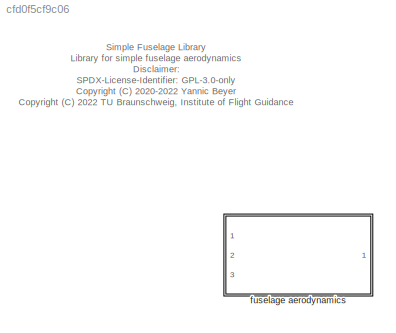
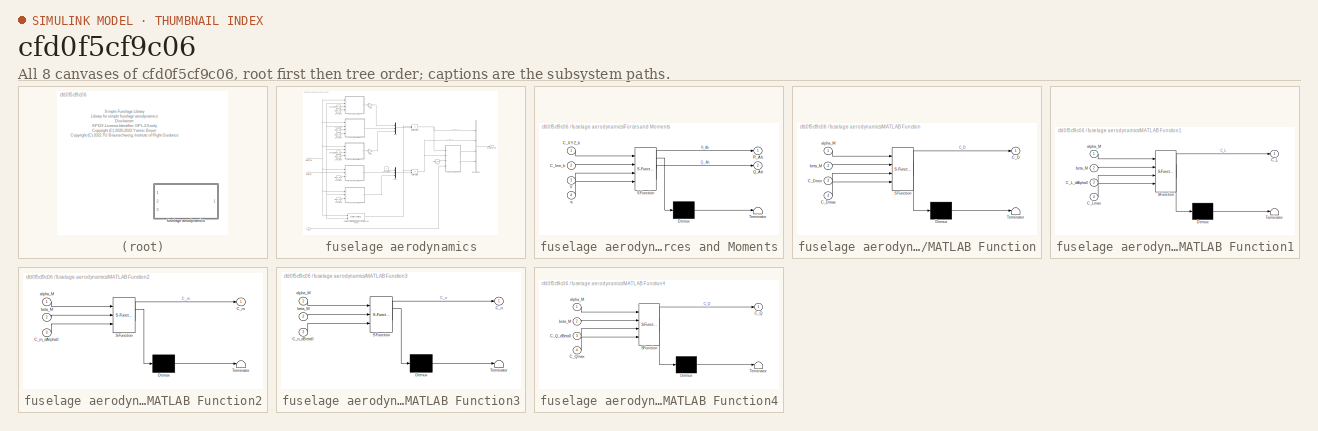
[diagram: thumbnail index - all 8 canvases of the model, root first then tree order]
MODEL slx_cfd0f5cf9c06
KIND library
CONFIG AbsTol = auto
CONFIG EnableMultiTasking = off
CONFIG FixedStep = auto
CONFIG MaxStep = auto
CONFIG MinStep = auto
CONFIG RelTol = 1e-3
CONFIG SampleTimeConstraint = Unconstrained
CONFIG Solver = VariableStepAuto
CONFIG SolverName = VariableStepAuto
CONFIG StartTime = 0.0
CONFIG StopTime = 10.0
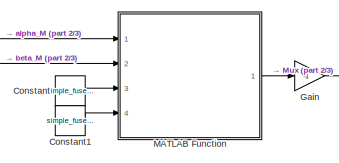
[diagram: fuselage aerodynamics - part 1/3, top left region]
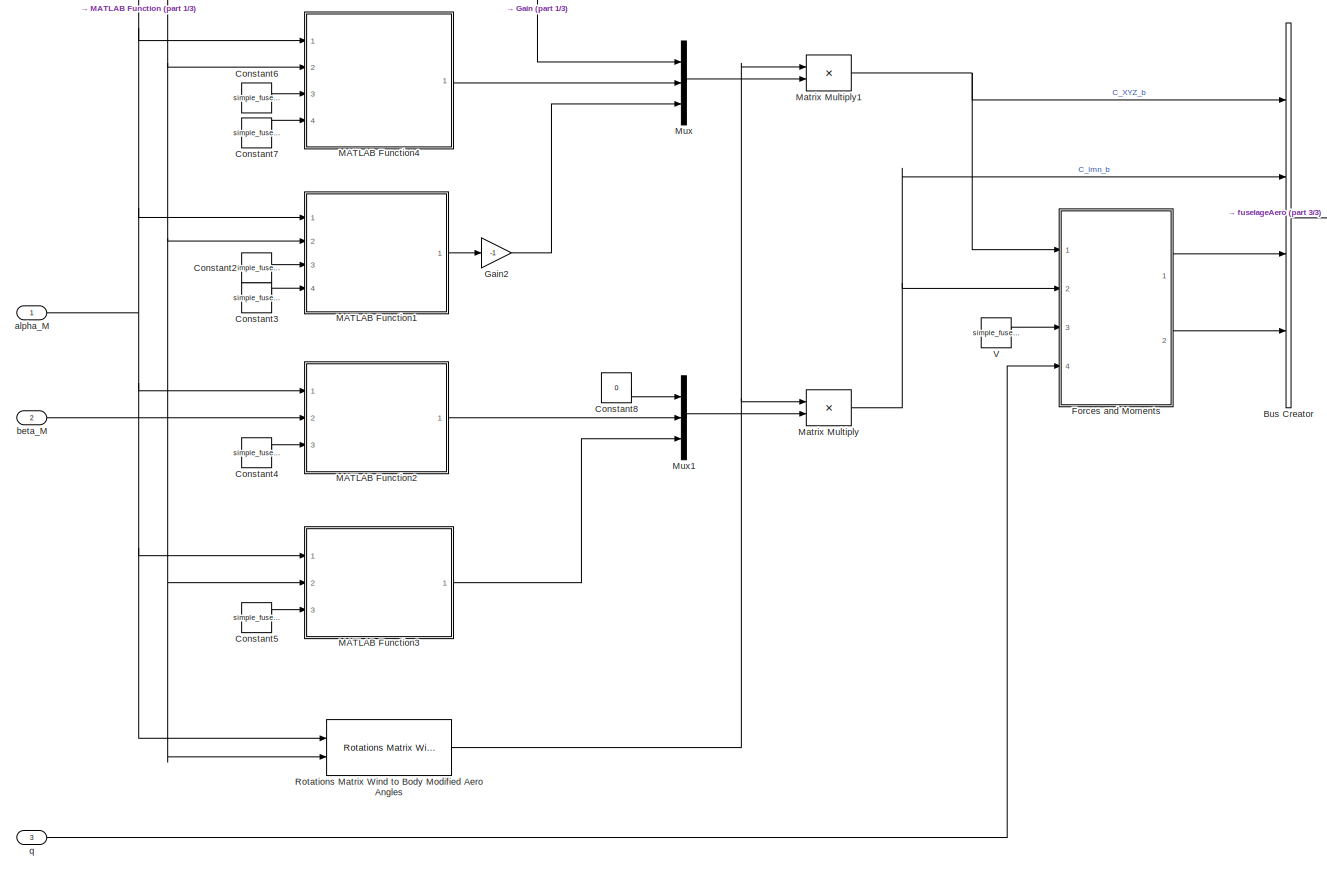
[diagram: fuselage aerodynamics - part 2/3, most of the canvas]
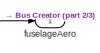
[diagram: fuselage aerodynamics - part 3/3, middle right region]
BLOCK [SubSystem] fuselage aerodynamics
  Ports = [3, 1]
  RequestExecContextInheritance = off
BLOCK [BusCreator] fuselage aerodynamics/Bus Creator
  DisplayOption = bar
  InheritFromInputs = on
  Inputs = 4
  Ports = [4, 1]
BLOCK [Constant] fuselage aerodynamics/Constant
  Value = simple_fuselage.C_Dmin
BLOCK [Constant] fuselage aerodynamics/Constant1
  Value = simple_fuselage.C_Dmax
BLOCK [Constant] fuselage aerodynamics/Constant2
  Value = simple_fuselage.dCL_dalpha0
BLOCK [Constant] fuselage aerodynamics/Constant3
  Value = simple_fuselage.C_Lmax
BLOCK [Constant] fuselage aerodynamics/Constant4
  Value = simple_fuselage.dCm_dalpha
BLOCK [Constant] fuselage aerodynamics/Constant5
  Value = simple_fuselage.dCn_dbeta
BLOCK [Constant] fuselage aerodynamics/Constant6
  Value = simple_fuselage.dCQ_dbeta0
BLOCK [Constant] fuselage aerodynamics/Constant7
  Value = simple_fuselage.C_Qmax
BLOCK [Constant] fuselage aerodynamics/Constant8
  Value = 0
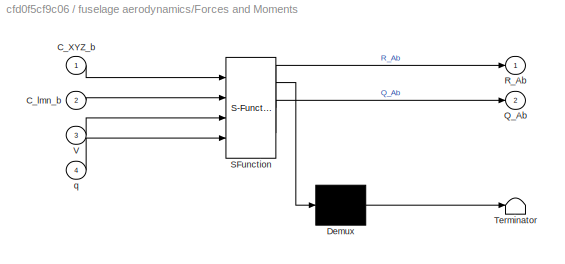
BLOCK [SubSystem] fuselage aerodynamics/Forces and Moments
  ErrorFcn = Stateflow.Translate.translate
  PermitHierarchicalResolution = ExplicitOnly
  Ports = [4, 2]
  RequestExecContextInheritance = off
  SFBlockType = MATLAB Function
  TreatAsAtomicUnit = on
BLOCK [Demux] fuselage aerodynamics/Forces and Moments/ Demux 
  Outputs = 1
  Ports = [1, 1]
BLOCK [S-Function] fuselage aerodynamics/Forces and Moments/ SFunction 
  EnableBusSupport = off
  FunctionName = sf_sfun
  PortCounts = [4 3]
  Ports = [4, 3]
  SFcnIsStateOwnerBlock = off
  SFunctionDeploymentMode = off
  Tag = Stateflow S-Function simpleFuselage_lib 17
BLOCK [Terminator] fuselage aerodynamics/Forces and Moments/ Terminator 
BLOCK [Inport] fuselage aerodynamics/Forces and Moments/C_XYZ_b
  IconDisplay = Port number
BLOCK [Inport] fuselage aerodynamics/Forces and Moments/C_lmn_b
  IconDisplay = Port number
  Port = 2
BLOCK [Outport] fuselage aerodynamics/Forces and Moments/Q_Ab
  IconDisplay = Port number
  Port = 2
BLOCK [Outport] fuselage aerodynamics/Forces and Moments/R_Ab
  IconDisplay = Port number
BLOCK [Inport] fuselage aerodynamics/Forces and Moments/V
  IconDisplay = Port number
  Port = 3
BLOCK [Inport] fuselage aerodynamics/Forces and Moments/q
  IconDisplay = Port number
  Port = 4
BLOCK [Gain] fuselage aerodynamics/Gain
  Gain = -1
  OutDataTypeStr = Inherit: Inherit via internal rule
  ParamDataTypeStr = Inherit: Inherit via internal rule
  SaturateOnIntegerOverflow = off
BLOCK [Gain] fuselage aerodynamics/Gain2
  Gain = -1
  OutDataTypeStr = Inherit: Inherit via internal rule
  ParamDataTypeStr = Inherit: Inherit via internal rule
  SaturateOnIntegerOverflow = off
BLOCK [SubSystem] fuselage aerodynamics/MATLAB Function
  ErrorFcn = Stateflow.Translate.translate
  PermitHierarchicalResolution = ExplicitOnly
  Ports = [4, 1]
  RequestExecContextInheritance = off
  SFBlockType = MATLAB Function
  TreatAsAtomicUnit = on
BLOCK [Demux] fuselage aerodynamics/MATLAB Function/ Demux 
  Outputs = 1
  Ports = [1, 1]
BLOCK [S-Function] fuselage aerodynamics/MATLAB Function/ SFunction 
  EnableBusSupport = off
  FunctionName = sf_sfun
  PortCounts = [4 2]
  Ports = [4, 2]
  SFcnIsStateOwnerBlock = off
  SFunctionDeploymentMode = off
  Tag = Stateflow S-Function simpleFuselage_lib 9
BLOCK [Terminator] fuselage aerodynamics/MATLAB Function/ Terminator 
BLOCK [Outport] fuselage aerodynamics/MATLAB Function/C_D
  IconDisplay = Port number
BLOCK [Inport] fuselage aerodynamics/MATLAB Function/C_Dmax
  IconDisplay = Port number
  Port = 4
BLOCK [Inport] fuselage aerodynamics/MATLAB Function/C_Dmin
  IconDisplay = Port number
  Port = 3
BLOCK [Inport] fuselage aerodynamics/MATLAB Function/alpha_M
  IconDisplay = Port number
BLOCK [Inport] fuselage aerodynamics/MATLAB Function/beta_M
  IconDisplay = Port number
  Port = 2
BLOCK [SubSystem] fuselage aerodynamics/MATLAB Function1
  ErrorFcn = Stateflow.Translate.translate
  PermitHierarchicalResolution = ExplicitOnly
  Ports = [4, 1]
  RequestExecContextInheritance = off
  SFBlockType = MATLAB Function
  TreatAsAtomicUnit = on
BLOCK [Demux] fuselage aerodynamics/MATLAB Function1/ Demux 
  Outputs = 1
  Ports = [1, 1]
BLOCK [S-Function] fuselage aerodynamics/MATLAB Function1/ SFunction 
  EnableBusSupport = off
  FunctionName = sf_sfun
  PortCounts = [4 2]
  Ports = [4, 2]
  SFcnIsStateOwnerBlock = off
  SFunctionDeploymentMode = off
  Tag = Stateflow S-Function simpleFuselage_lib 5
BLOCK [Terminator] fuselage aerodynamics/MATLAB Function1/ Terminator 
BLOCK [Outport] fuselage aerodynamics/MATLAB Function1/C_L
  IconDisplay = Port number
BLOCK [Inport] fuselage aerodynamics/MATLAB Function1/C_L_dAlpha0
  IconDisplay = Port number
  Port = 3
BLOCK [Inport] fuselage aerodynamics/MATLAB Function1/C_Lmax
  IconDisplay = Port number
  Port = 4
BLOCK [Inport] fuselage aerodynamics/MATLAB Function1/alpha_M
  IconDisplay = Port number
BLOCK [Inport] fuselage aerodynamics/MATLAB Function1/beta_M
  IconDisplay = Port number
  Port = 2
BLOCK [SubSystem] fuselage aerodynamics/MATLAB Function2
  ErrorFcn = Stateflow.Translate.translate
  PermitHierarchicalResolution = ExplicitOnly
  Ports = [3, 1]
  RequestExecContextInheritance = off
  SFBlockType = MATLAB Function
  TreatAsAtomicUnit = on
BLOCK [Demux] fuselage aerodynamics/MATLAB Function2/ Demux 
  Outputs = 1
  Ports = [1, 1]
BLOCK [S-Function] fuselage aerodynamics/MATLAB Function2/ SFunction 
  EnableBusSupport = off
  FunctionName = sf_sfun
  PortCounts = [3 2]
  Ports = [3, 2]
  SFcnIsStateOwnerBlock = off
  SFunctionDeploymentMode = off
  Tag = Stateflow S-Function simpleFuselage_lib 11
BLOCK [Terminator] fuselage aerodynamics/MATLAB Function2/ Terminator 
BLOCK [Outport] fuselage aerodynamics/MATLAB Function2/C_m
  IconDisplay = Port number
BLOCK [Inport] fuselage aerodynamics/MATLAB Function2/C_m_dAlpha0
  IconDisplay = Port number
  Port = 3
BLOCK [Inport] fuselage aerodynamics/MATLAB Function2/alpha_M
  IconDisplay = Port number
BLOCK [Inport] fuselage aerodynamics/MATLAB Function2/beta_M
  IconDisplay = Port number
  Port = 2
BLOCK [SubSystem] fuselage aerodynamics/MATLAB Function3
  ErrorFcn = Stateflow.Translate.translate
  PermitHierarchicalResolution = ExplicitOnly
  Ports = [3, 1]
  RequestExecContextInheritance = off
  SFBlockType = MATLAB Function
  TreatAsAtomicUnit = on
BLOCK [Demux] fuselage aerodynamics/MATLAB Function3/ Demux 
  Outputs = 1
  Ports = [1, 1]
BLOCK [S-Function] fuselage aerodynamics/MATLAB Function3/ SFunction 
  EnableBusSupport = off
  FunctionName = sf_sfun
  PortCounts = [3 2]
  Ports = [3, 2]
  SFcnIsStateOwnerBlock = off
  SFunctionDeploymentMode = off
  Tag = Stateflow S-Function simpleFuselage_lib 6
BLOCK [Terminator] fuselage aerodynamics/MATLAB Function3/ Terminator 
BLOCK [Outport] fuselage aerodynamics/MATLAB Function3/C_n
  IconDisplay = Port number
BLOCK [Inport] fuselage aerodynamics/MATLAB Function3/C_n_dBeta0
  IconDisplay = Port number
  Port = 3
BLOCK [Inport] fuselage aerodynamics/MATLAB Function3/alpha_M
  IconDisplay = Port number
BLOCK [Inport] fuselage aerodynamics/MATLAB Function3/beta_M
  IconDisplay = Port number
  Port = 2
BLOCK [SubSystem] fuselage aerodynamics/MATLAB Function4
  ErrorFcn = Stateflow.Translate.translate
  PermitHierarchicalResolution = ExplicitOnly
  Ports = [4, 1]
  RequestExecContextInheritance = off
  SFBlockType = MATLAB Function
  TreatAsAtomicUnit = on
BLOCK [Demux] fuselage aerodynamics/MATLAB Function4/ Demux 
  Outputs = 1
  Ports = [1, 1]
BLOCK [S-Function] fuselage aerodynamics/MATLAB Function4/ SFunction 
  EnableBusSupport = off
  FunctionName = sf_sfun
  PortCounts = [4 2]
  Ports = [4, 2]
  SFcnIsStateOwnerBlock = off
  SFunctionDeploymentMode = off
  Tag = Stateflow S-Function simpleFuselage_lib 13
BLOCK [Terminator] fuselage aerodynamics/MATLAB Function4/ Terminator 
BLOCK [Outport] fuselage aerodynamics/MATLAB Function4/C_Q
  IconDisplay = Port number
BLOCK [Inport] fuselage aerodynamics/MATLAB Function4/C_Q_dBeta0
  IconDisplay = Port number
  Port = 3
BLOCK [Inport] fuselage aerodynamics/MATLAB Function4/C_Qmax
  IconDisplay = Port number
  Port = 4
BLOCK [Inport] fuselage aerodynamics/MATLAB Function4/alpha_M
  IconDisplay = Port number
BLOCK [Inport] fuselage aerodynamics/MATLAB Function4/beta_M
  IconDisplay = Port number
  Port = 2
BLOCK [Product] fuselage aerodynamics/Matrix Multiply
  InputSameDT = off
  Multiplication = Matrix(*)
  OutDataTypeStr = Inherit: Inherit via internal rule
  Ports = [2, 1]
  RndMeth = Floor
  SaturateOnIntegerOverflow = off
BLOCK [Product] fuselage aerodynamics/Matrix Multiply1
  InputSameDT = off
  Multiplication = Matrix(*)
  OutDataTypeStr = Inherit: Inherit via internal rule
  Ports = [2, 1]
  RndMeth = Floor
  SaturateOnIntegerOverflow = off
BLOCK [Mux] fuselage aerodynamics/Mux
  DisplayOption = bar
  Inputs = 3
  Ports = [3, 1]
BLOCK [Mux] fuselage aerodynamics/Mux1
  DisplayOption = bar
  Inputs = 3
  Ports = [3, 1]
BLOCK [Reference] fuselage aerodynamics/Rotations Matrix Wind to Body Modified Aero Angles  REF=axes_transformation_lib/Rotations Matrix  (lib defined in slx_69e2413c78c0)
Wind to Body
Modified Aero Angles
  Ports = [2, 1]
  SourceBlock = axes_transformation_lib/Rotations Matrix\nWind to Body\nModified Aero Angles
  SourceProductName = LADAC
  SourceType = SubSystem
BLOCK [Constant] fuselage aerodynamics/V
  Value = simple_fuselage.V
BLOCK [Inport] fuselage aerodynamics/alpha_M
  IconDisplay = Port number
BLOCK [Inport] fuselage aerodynamics/beta_M
  IconDisplay = Port number
  Port = 2
BLOCK [Outport] fuselage aerodynamics/fuselageAero
  IconDisplay = Port number
BLOCK [Inport] fuselage aerodynamics/q
  IconDisplay = Port number
  Port = 3
ANNOTATION (root): Simple Fuselage Library Library for simple fuselage aerodynamics Disclaimer: SPDX-License-Identifier: GPL-3.0-only <copyright redacted>
LINE fuselage aerodynamics/Bus Creator:1 -> fuselage aerodynamics/fuselageAero:1
LINE fuselage aerodynamics/Constant1:1 -> fuselage aerodynamics/MATLAB Function:4
LINE fuselage aerodynamics/Constant2:1 -> fuselage aerodynamics/MATLAB Function1:3
LINE fuselage aerodynamics/Constant3:1 -> fuselage aerodynamics/MATLAB Function1:4
LINE fuselage aerodynamics/Constant4:1 -> fuselage aerodynamics/MATLAB Function2:3
LINE fuselage aerodynamics/Constant5:1 -> fuselage aerodynamics/MATLAB Function3:3
LINE fuselage aerodynamics/Constant6:1 -> fuselage aerodynamics/MATLAB Function4:3
LINE fuselage aerodynamics/Constant7:1 -> fuselage aerodynamics/MATLAB Function4:4
LINE fuselage aerodynamics/Constant8:1 -> fuselage aerodynamics/Mux1:1
LINE fuselage aerodynamics/Constant:1 -> fuselage aerodynamics/MATLAB Function:3
LINE fuselage aerodynamics/Forces and Moments:1 -> fuselage aerodynamics/Bus Creator:3
LINE fuselage aerodynamics/Forces and Moments:2 -> fuselage aerodynamics/Bus Creator:4
LINE fuselage aerodynamics/Gain2:1 -> fuselage aerodynamics/Mux:3
LINE fuselage aerodynamics/Gain:1 -> fuselage aerodynamics/Mux:1
LINE fuselage aerodynamics/MATLAB Function1:1 -> fuselage aerodynamics/Gain2:1
LINE fuselage aerodynamics/MATLAB Function2:1 -> fuselage aerodynamics/Mux1:2
LINE fuselage aerodynamics/MATLAB Function3:1 -> fuselage aerodynamics/Mux1:3
LINE fuselage aerodynamics/MATLAB Function4:1 -> fuselage aerodynamics/Mux:2
LINE fuselage aerodynamics/MATLAB Function:1 -> fuselage aerodynamics/Gain:1
NET fuselage aerodynamics/Matrix Multiply1:1 -> fuselage aerodynamics/Bus Creator:1, fuselage aerodynamics/Forces and Moments:1
NET fuselage aerodynamics/Matrix Multiply:1 -> fuselage aerodynamics/Bus Creator:2, fuselage aerodynamics/Forces and Moments:2
LINE fuselage aerodynamics/Mux1:1 -> fuselage aerodynamics/Matrix Multiply:2
LINE fuselage aerodynamics/Mux:1 -> fuselage aerodynamics/Matrix Multiply1:2
NET fuselage aerodynamics/Rotations Matrix Wind to Body Modified Aero Angles:1 -> fuselage aerodynamics/Matrix Multiply1:1, fuselage aerodynamics/Matrix Multiply:1
LINE fuselage aerodynamics/V:1 -> fuselage aerodynamics/Forces and Moments:3
NET fuselage aerodynamics/alpha_M:1 -> fuselage aerodynamics/MATLAB Function1:1, fuselage aerodynamics/MATLAB Function2:1, fuselage aerodynamics/MATLAB Function3:1, fuselage aerodynamics/MATLAB Function4:1, fuselage aerodynamics/MATLAB Function:1, fuselage aerodynamics/Rotations Matrix Wind to Body Modified Aero Angles:1
NET fuselage aerodynamics/beta_M:1 -> fuselage aerodynamics/MATLAB Function1:2, fuselage aerodynamics/MATLAB Function2:2, fuselage aerodynamics/MATLAB Function3:2, fuselage aerodynamics/MATLAB Function4:2, fuselage aerodynamics/MATLAB Function:2, fuselage aerodynamics/Rotations Matrix Wind to Body Modified Aero Angles:2
LINE fuselage aerodynamics/q:1 -> fuselage aerodynamics/Forces and Moments:4
note: NET lines group one-source signal fan-out (src -> all destinations, sorted); 1:1 wires keep LINE
CHART fuselage aerodynamics/MATLAB Function1 states=1 transitions=1
  STATE_LABEL 'eML_blk_kernel()'
  STATE_LABEL 'SCRIPT:\nfunction C_L = fcn( alpha_M, beta_M, C_L_dAlpha0, C_Lmax ) %#codegen\n\nC_L = simpleFuselageCl( alpha_M, beta_M, C_L_dAlpha0, C_Lmax );\n\nend'
CHART fuselage aerodynamics/MATLAB Function3 states=1 transitions=1
  STATE_LABEL 'eML_blk_kernel()'
  STATE_LABEL 'SCRIPT:\nfunction C_n = fcn( alpha_M, beta_M, C_n_dBeta0 ) %#codegen\n\nC_n = simpleFuselageCn( alpha_M, beta_M, C_n_dBeta0 );\n\nend'
CHART fuselage aerodynamics/MATLAB Function states=1 transitions=1
  STATE_LABEL 'eML_blk_kernel()'
  STATE_LABEL 'SCRIPT:\nfunction C_D = fcn( alpha_M, beta_M, C_Dmin, C_Dmax ) %#codegen\n\nC_D = simpleFuselageCd( alpha_M, beta_M, C_Dmin, C_Dmax );\n\nend'
CHART fuselage aerodynamics/MATLAB Function2 states=1 transitions=1
  STATE_LABEL 'eML_blk_kernel()'
  STATE_LABEL 'SCRIPT:\nfunction C_m = fcn( alpha_M, beta_M, C_m_dAlpha0 ) %#codegen\n\nC_m = simpleFuselageCm( alpha_M, beta_M, C_m_dAlpha0 );\n\nend'
CHART fuselage aerodynamics/MATLAB Function4 states=1 transitions=1
  STATE_LABEL 'eML_blk_kernel()'
  STATE_LABEL 'SCRIPT:\nfunction C_Q = fcn( alpha_M, beta_M, C_Q_dBeta0, C_Qmax ) %#codegen\n\nC_Q = simpleFuselageCq( alpha_M, beta_M, C_Q_dBeta0, C_Qmax );\n\nend'
CHART fuselage aerodynamics/Forces and Moments states=1 transitions=1
  STATE_LABEL 'eML_blk_kernel()'
  STATE_LABEL 'SCRIPT:\nfunction [ R_Ab, Q_Ab ] = fcn(C_XYZ_b, C_lmn_b, V, q) %#codegen\n\nV = max(0,V);\n\nR_Ab = C_XYZ_b * V^(2/3) * q;\n\nQ_Ab = C_lmn_b * V * q;\n\nend\n'
